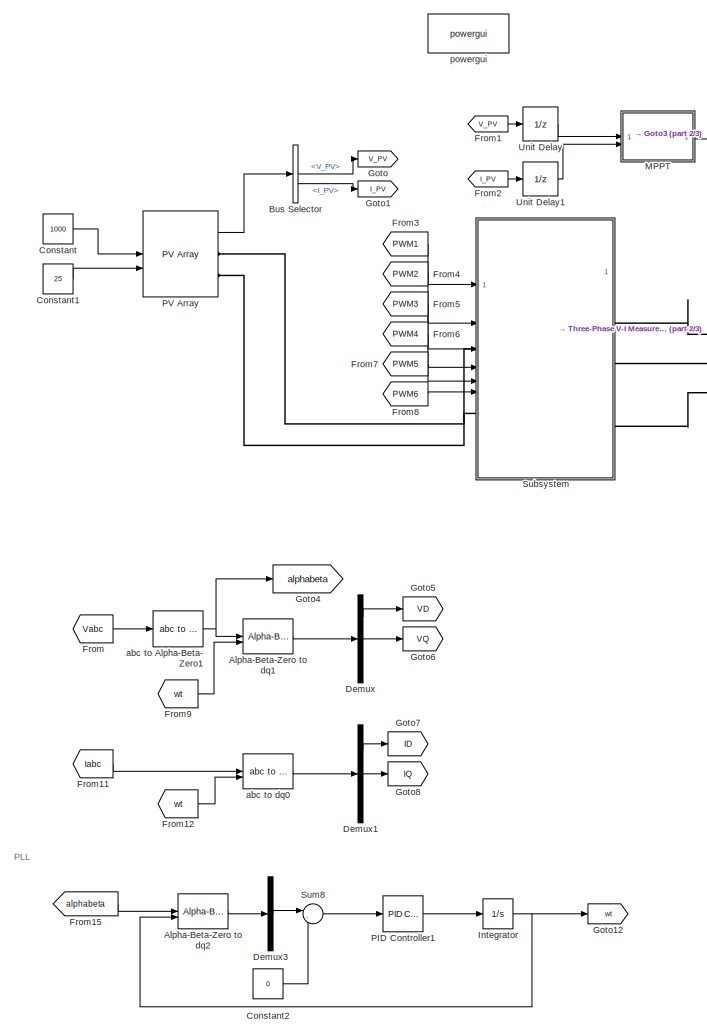
[diagram: root canvas - part 1/3, left side, full height]
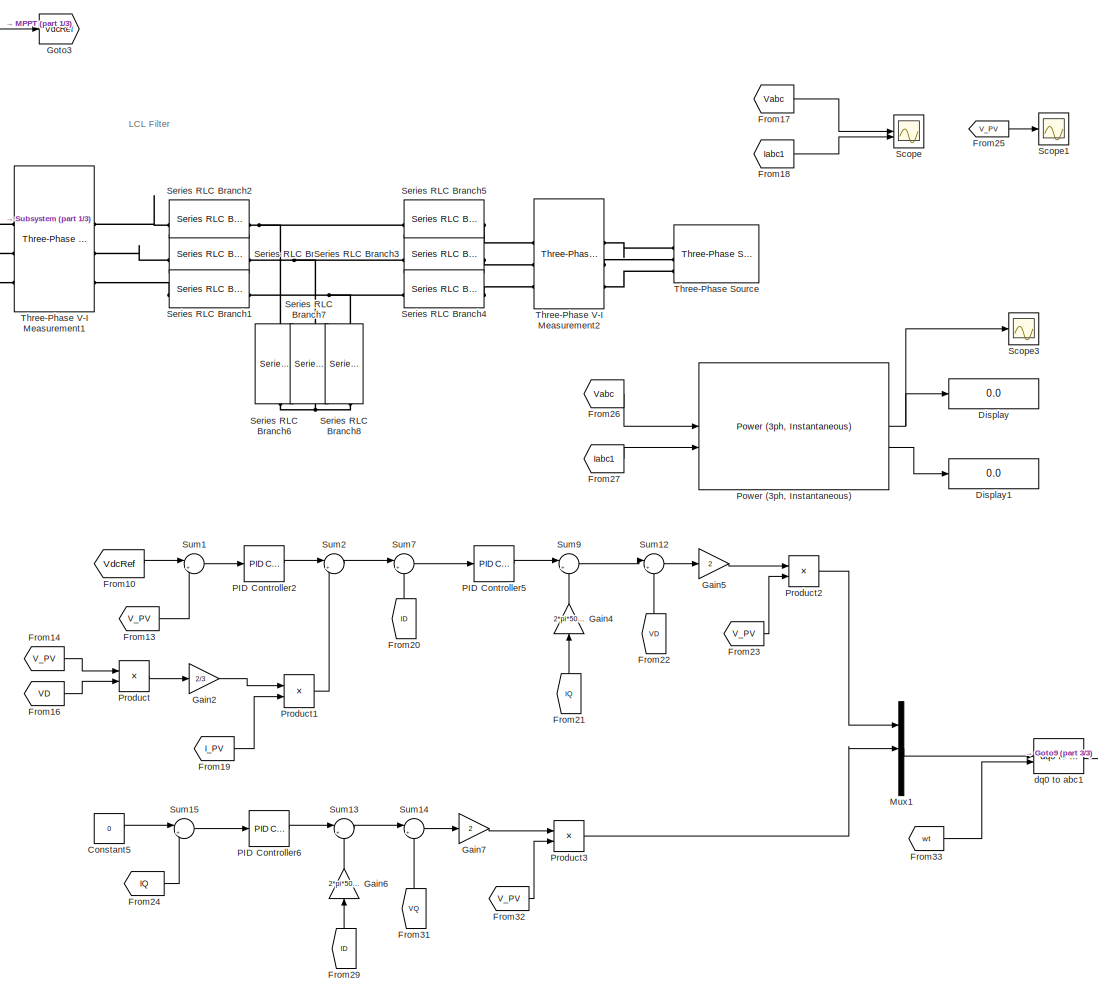
[diagram: root canvas - part 2/3, center side, full height]
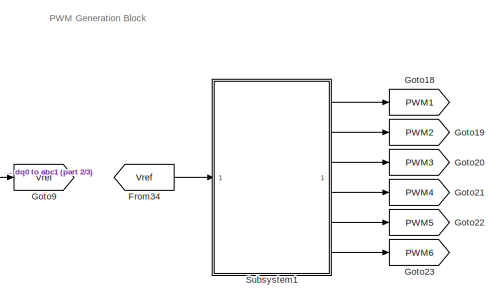
[diagram: root canvas - part 3/3, bottom right region]
MODEL slx_18b211c96a8c
KIND model
CONFIG AbsTol = auto
CONFIG EnableMultiTasking = off
CONFIG FixedStep = 1e-6
CONFIG MaxStep = auto
CONFIG MinStep = auto
CONFIG RelTol = 1e-3
CONFIG SampleTimeConstraint = Unconstrained
CONFIG SolverName = ode8
CONFIG StartTime = 0.0
CONFIG StopTime = 0.5
BLOCK [Reference] Alpha-Beta-Zero to dq1  REF=spsAlphaBetaZerotodq0Lib/Alpha-Beta-Zero
to dq0
  LibrarySourceBlock = sps_lib/Control/Alpha-Beta-Zero\nto dq0
  SourceBlock = spsAlphaBetaZerotodq0Lib/Alpha-Beta-Zero\nto dq0
  SourceType = Alpha-Beta-Zero to dq0 Transformation
BLOCK [Reference] Alpha-Beta-Zero to dq2  REF=spsAlphaBetaZerotodq0Lib/Alpha-Beta-Zero
to dq0
  LibrarySourceBlock = sps_lib/Control/Alpha-Beta-Zero\nto dq0
  SourceBlock = spsAlphaBetaZerotodq0Lib/Alpha-Beta-Zero\nto dq0
  SourceType = Alpha-Beta-Zero to dq0 Transformation
BLOCK [BusSelector] Bus Selector
  OutputSignals = V_PV,I_PV
BLOCK [Constant] Constant
  Value = 1000
BLOCK [Constant] Constant1
  Value = 25
BLOCK [Constant] Constant2
  Value = 0
BLOCK [Constant] Constant5
  Value = 0
BLOCK [Demux] Demux
  Outputs = 3
BLOCK [Demux] Demux1
  Outputs = 3
BLOCK [Demux] Demux3
  Outputs = 3
BLOCK [Display] Display
  Decimation = 1
BLOCK [Display] Display1
  Decimation = 1
BLOCK [From] From
  GotoTag = Vabc
  TagVisibility = global
BLOCK [From] From1
  GotoTag = V_PV
BLOCK [From] From10
  GotoTag = VdcRef
BLOCK [From] From11
  GotoTag = Iabc
  TagVisibility = global
BLOCK [From] From12
  GotoTag = wt
BLOCK [From] From13
  GotoTag = V_PV
BLOCK [From] From14
  GotoTag = V_PV
BLOCK [From] From15
  GotoTag = alphabeta
BLOCK [From] From16
  GotoTag = VD
BLOCK [From] From17
  GotoTag = Vabc
  TagVisibility = global
BLOCK [From] From18
  GotoTag = Iabc1
  TagVisibility = global
BLOCK [From] From19
  GotoTag = I_PV
BLOCK [From] From2
  GotoTag = I_PV
BLOCK [From] From20
  GotoTag = ID
  NameLocation = right
BLOCK [From] From21
  GotoTag = IQ
  NameLocation = right
BLOCK [From] From22
  GotoTag = VD
  NameLocation = right
BLOCK [From] From23
  GotoTag = V_PV
BLOCK [From] From24
  GotoTag = IQ
BLOCK [From] From25
  GotoTag = V_PV
BLOCK [From] From26
  GotoTag = Vabc
  TagVisibility = global
BLOCK [From] From27
  GotoTag = Iabc1
  TagVisibility = global
BLOCK [From] From29
  GotoTag = ID
  NameLocation = right
BLOCK [From] From3
  GotoTag = PWM1
BLOCK [From] From31
  GotoTag = VQ
  NameLocation = right
BLOCK [From] From32
  GotoTag = V_PV
BLOCK [From] From33
  GotoTag = wt
BLOCK [From] From34
  GotoTag = Vref
BLOCK [From] From4
  GotoTag = PWM2
BLOCK [From] From5
  GotoTag = PWM3
BLOCK [From] From6
  GotoTag = PWM4
BLOCK [From] From7
  GotoTag = PWM5
BLOCK [From] From8
  GotoTag = PWM6
BLOCK [From] From9
  GotoTag = wt
BLOCK [Gain] Gain2
  Gain = 2/3
BLOCK [Gain] Gain4
  Gain = 2*pi*50*1000e-6
  NameLocation = right
BLOCK [Gain] Gain5
  Gain = 2
BLOCK [Gain] Gain6
  Gain = 2*pi*50*1000e-6
  NameLocation = right
BLOCK [Gain] Gain7
  Gain = 2
BLOCK [Goto] Goto
  GotoTag = V_PV
BLOCK [Goto] Goto1
  GotoTag = I_PV
BLOCK [Goto] Goto12
  GotoTag = wt
BLOCK [Goto] Goto18
  GotoTag = PWM1
BLOCK [Goto] Goto19
  GotoTag = PWM2
BLOCK [Goto] Goto20
  GotoTag = PWM3
BLOCK [Goto] Goto21
  GotoTag = PWM4
BLOCK [Goto] Goto22
  GotoTag = PWM5
BLOCK [Goto] Goto23
  GotoTag = PWM6
BLOCK [Goto] Goto3
  GotoTag = VdcRef
BLOCK [Goto] Goto4
  GotoTag = alphabeta
BLOCK [Goto] Goto5
  GotoTag = VD
BLOCK [Goto] Goto6
  GotoTag = VQ
BLOCK [Goto] Goto7
  GotoTag = ID
BLOCK [Goto] Goto8
  GotoTag = IQ
BLOCK [Goto] Goto9
  GotoTag = Vref
BLOCK [Integrator] Integrator
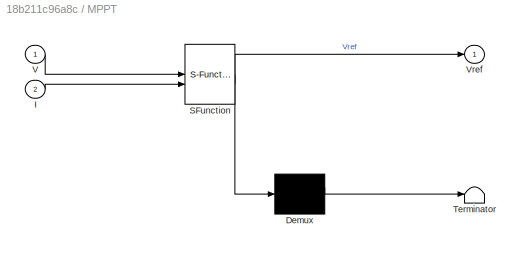
BLOCK [SubSystem] MPPT
  ErrorFcn = Stateflow.Translate.translate
  LibrarySourceBlock = simulink/User-Defined\nFunctions/MATLAB Function
  PermitHierarchicalResolution = ExplicitOnly
  SFBlockType = MATLAB Function
  TreatAsAtomicUnit = on
BLOCK [Demux] MPPT/ Demux 
  Outputs = 1
BLOCK [S-Function] MPPT/ SFunction 
  EnableBusSupport = on
  FunctionName = sf_sfun
  PortCounts = [2 2]
  SFcnIsStateOwnerBlock = off
  SFunctionDeploymentMode = off
  Tag = Stateflow S-Function 2
BLOCK [Terminator] MPPT/ Terminator 
BLOCK [Inport] MPPT/I
  Port = 2
BLOCK [Inport] MPPT/V
BLOCK [Outport] MPPT/Vref
BLOCK [Mux] Mux1
  DisplayOption = bar
  Inputs = 3
BLOCK [Reference] PID Controller1  REF=slpidlib/PID Controller
  LibrarySourceBlock = simulink/Continuous/PID Controller
  SourceBlock = slpidlib/PID Controller
  SourceType = PID 1dof
BLOCK [Reference] PID Controller2  REF=slpidlib/PID Controller
  LibrarySourceBlock = simulink/Continuous/PID Controller
  SourceBlock = slpidlib/PID Controller
  SourceType = PID 1dof
BLOCK [Reference] PID Controller5  REF=slpidlib/PID Controller
  LibrarySourceBlock = simulink/Continuous/PID Controller
  SourceBlock = slpidlib/PID Controller
  SourceType = PID 1dof
BLOCK [Reference] PID Controller6  REF=slpidlib/PID Controller
  LibrarySourceBlock = simulink/Continuous/PID Controller
  SourceBlock = slpidlib/PID Controller
  SourceType = PID 1dof
BLOCK [Reference] PV Array  REF=spsPVArrayLib/PV Array
  LibrarySourceBlock = sps_lib/Sources/PV Array
  SourceBlock = spsPVArrayLib/PV Array
  SourceType = PV array
BLOCK [Reference] Power (3ph, Instantaneous)  REF=spsPower3phInstantaneousLib/Power
(3ph, Instantaneous)
  LibrarySourceBlock = sps_lib/Sensors and Measurements/Power\n(3ph, Instantaneous)
  SourceBlock = spsPower3phInstantaneousLib/Power\n(3ph, Instantaneous)
  SourceType = Power (3ph, Instantaneous)
BLOCK [Product] Product
  Inputs = */
BLOCK [Product] Product1
BLOCK [Product] Product2
  Inputs = */
BLOCK [Product] Product3
  Inputs = */
BLOCK [Scope] Scope
  Floating = off
  NumInputPorts = 2
  ScopeSpecificationString = Simulink.scopes.TimeScopeBlockCfg('CurrentConfiguration', extmgr.ConfigurationSet(extmgr.Configuration('Core','General UI',true),extmgr.Configuration('Core','Source UI',true),extmgr.Configuration('Sources','WiredSimulink',true,'DataLoggingSaveFormat','StructureWithTime'),extmgr.Configuration('Visuals','Time Domain',true,'SerializedDisplays',{struct('MinYLimReal','-408.40142','MaxYLimReal','408.471...<+2088ch>
BLOCK [Scope] Scope1
  Floating = off
  NumInputPorts = 1
  ScopeSpecificationString = Simulink.scopes.TimeScopeBlockCfg('CurrentConfiguration', extmgr.ConfigurationSet(extmgr.Configuration('Core','General UI',true),extmgr.Configuration('Core','Source UI',true),extmgr.Configuration('Sources','WiredSimulink',true,'DataLoggingVariableName','ScopeData1'),extmgr.Configuration('Visuals','Time Domain',true,'SerializedDisplays',{struct('MinYLimReal','-109.10547','MaxYLimReal','982.72803','...<+1408ch>
BLOCK [Scope] Scope3
  Floating = off
  NumInputPorts = 1
  ScopeSpecificationString = Simulink.scopes.TimeScopeBlockCfg('CurrentConfiguration', extmgr.ConfigurationSet(extmgr.Configuration('Core','General UI',true),extmgr.Configuration('Core','Source UI',true),extmgr.Configuration('Sources','WiredSimulink',true,'DataLoggingVariableName','ScopeData2'),extmgr.Configuration('Visuals','Time Domain',true,'SerializedDisplays',{struct('MinYLimReal','-253369.15548','MaxYLimReal','232535.47...<+1452ch>
BLOCK [Reference] Series RLC Branch  REF=spsSeriesRLCBranchLib/Series RLC Branch
  LibrarySourceBlock = sps_lib/Passives/Series RLC Branch
  SourceBlock = spsSeriesRLCBranchLib/Series RLC Branch
  SourceType = Series RLC Branch
BLOCK [Reference] Series RLC Branch1  REF=spsSeriesRLCBranchLib/Series RLC Branch
  LibrarySourceBlock = sps_lib/Passives/Series RLC Branch
  SourceBlock = spsSeriesRLCBranchLib/Series RLC Branch
  SourceType = Series RLC Branch
BLOCK [Reference] Series RLC Branch2  REF=spsSeriesRLCBranchLib/Series RLC Branch
  LibrarySourceBlock = sps_lib/Passives/Series RLC Branch
  SourceBlock = spsSeriesRLCBranchLib/Series RLC Branch
  SourceType = Series RLC Branch
BLOCK [Reference] Series RLC Branch3  REF=spsSeriesRLCBranchLib/Series RLC Branch
  LibrarySourceBlock = sps_lib/Passives/Series RLC Branch
  SourceBlock = spsSeriesRLCBranchLib/Series RLC Branch
  SourceType = Series RLC Branch
BLOCK [Reference] Series RLC Branch4  REF=spsSeriesRLCBranchLib/Series RLC Branch
  LibrarySourceBlock = sps_lib/Passives/Series RLC Branch
  SourceBlock = spsSeriesRLCBranchLib/Series RLC Branch
  SourceType = Series RLC Branch
BLOCK [Reference] Series RLC Branch5  REF=spsSeriesRLCBranchLib/Series RLC Branch
  LibrarySourceBlock = sps_lib/Passives/Series RLC Branch
  SourceBlock = spsSeriesRLCBranchLib/Series RLC Branch
  SourceType = Series RLC Branch
BLOCK [Reference] Series RLC Branch6  REF=spsSeriesRLCBranchLib/Series RLC Branch
  LibrarySourceBlock = sps_lib/Passives/Series RLC Branch
  NameLocation = left
  SourceBlock = spsSeriesRLCBranchLib/Series RLC Branch
  SourceType = Series RLC Branch
BLOCK [Reference] Series RLC Branch7  REF=spsSeriesRLCBranchLib/Series RLC Branch
  LibrarySourceBlock = sps_lib/Passives/Series RLC Branch
  NameLocation = left
  SourceBlock = spsSeriesRLCBranchLib/Series RLC Branch
  SourceType = Series RLC Branch
BLOCK [Reference] Series RLC Branch8  REF=spsSeriesRLCBranchLib/Series RLC Branch
  LibrarySourceBlock = sps_lib/Passives/Series RLC Branch
  NameLocation = left
  SourceBlock = spsSeriesRLCBranchLib/Series RLC Branch
  SourceType = Series RLC Branch
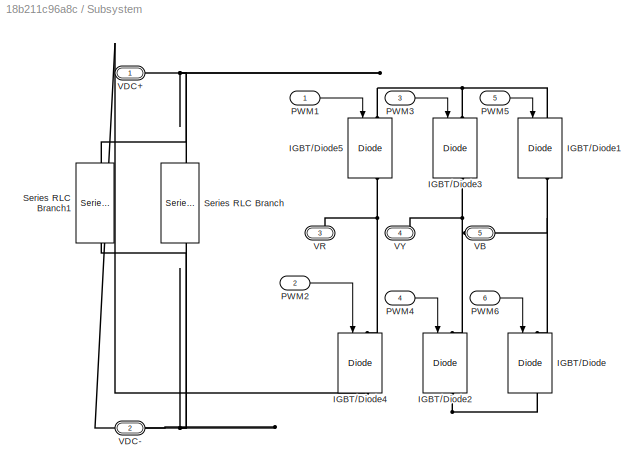
BLOCK [SubSystem] Subsystem
BLOCK [Reference] Subsystem/IGBT//Diode  REF=spsIGBTDiodeLib/IGBT//Diode
  LibrarySourceBlock = sps_lib/Power Electronics/IGBT//Diode
  NameLocation = left
  SourceBlock = spsIGBTDiodeLib/IGBT//Diode
  SourceType = IGBT/Diode
BLOCK [Reference] Subsystem/IGBT//Diode1  REF=spsIGBTDiodeLib/IGBT//Diode
  LibrarySourceBlock = sps_lib/Power Electronics/IGBT//Diode
  NameLocation = left
  SourceBlock = spsIGBTDiodeLib/IGBT//Diode
  SourceType = IGBT/Diode
BLOCK [Reference] Subsystem/IGBT//Diode2  REF=spsIGBTDiodeLib/IGBT//Diode
  LibrarySourceBlock = sps_lib/Power Electronics/IGBT//Diode
  NameLocation = left
  SourceBlock = spsIGBTDiodeLib/IGBT//Diode
  SourceType = IGBT/Diode
BLOCK [Reference] Subsystem/IGBT//Diode3  REF=spsIGBTDiodeLib/IGBT//Diode
  LibrarySourceBlock = sps_lib/Power Electronics/IGBT//Diode
  NameLocation = left
  SourceBlock = spsIGBTDiodeLib/IGBT//Diode
  SourceType = IGBT/Diode
BLOCK [Reference] Subsystem/IGBT//Diode4  REF=spsIGBTDiodeLib/IGBT//Diode
  LibrarySourceBlock = sps_lib/Power Electronics/IGBT//Diode
  NameLocation = left
  SourceBlock = spsIGBTDiodeLib/IGBT//Diode
  SourceType = IGBT/Diode
BLOCK [Reference] Subsystem/IGBT//Diode5  REF=spsIGBTDiodeLib/IGBT//Diode
  LibrarySourceBlock = sps_lib/Power Electronics/IGBT//Diode
  NameLocation = left
  SourceBlock = spsIGBTDiodeLib/IGBT//Diode
  SourceType = IGBT/Diode
BLOCK [Inport] Subsystem/PWM1
BLOCK [Inport] Subsystem/PWM2
  Port = 2
BLOCK [Inport] Subsystem/PWM3
  Port = 3
BLOCK [Inport] Subsystem/PWM4
  Port = 4
BLOCK [Inport] Subsystem/PWM5
  Port = 5
BLOCK [Inport] Subsystem/PWM6
  Port = 6
BLOCK [Reference] Subsystem/Series RLC Branch  REF=spsSeriesRLCBranchLib/Series RLC Branch
  LibrarySourceBlock = sps_lib/Passives/Series RLC Branch
  NameLocation = left
  SourceBlock = spsSeriesRLCBranchLib/Series RLC Branch
  SourceType = Series RLC Branch
BLOCK [Reference] Subsystem/Series RLC Branch1  REF=spsSeriesRLCBranchLib/Series RLC Branch
  LibrarySourceBlock = sps_lib/Passives/Series RLC Branch
  NameLocation = left
  SourceBlock = spsSeriesRLCBranchLib/Series RLC Branch
  SourceType = Series RLC Branch
BLOCK [PMIOPort] Subsystem/VB
  Port = 5
  Side = Right
BLOCK [PMIOPort] Subsystem/VDC+
  Side = Left
BLOCK [PMIOPort] Subsystem/VDC-
  Port = 2
  Side = Left
BLOCK [PMIOPort] Subsystem/VR
  Port = 3
  Side = Right
BLOCK [PMIOPort] Subsystem/VY
  Port = 4
  Side = Right
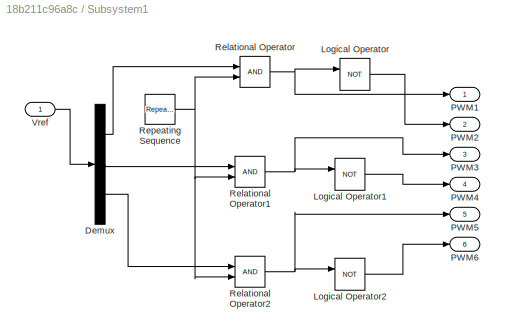
BLOCK [SubSystem] Subsystem1
BLOCK [Demux] Subsystem1/Demux
  Outputs = 3
BLOCK [Logic] Subsystem1/Logical Operator
  AllPortsSameDT = off
  Operator = NOT
  OutDataTypeStr = boolean
BLOCK [Logic] Subsystem1/Logical Operator1
  AllPortsSameDT = off
  Operator = NOT
  OutDataTypeStr = boolean
BLOCK [Logic] Subsystem1/Logical Operator2
  AllPortsSameDT = off
  Operator = NOT
  OutDataTypeStr = boolean
BLOCK [Outport] Subsystem1/PWM1
BLOCK [Outport] Subsystem1/PWM2
  Port = 2
BLOCK [Outport] Subsystem1/PWM3
  Port = 3
BLOCK [Outport] Subsystem1/PWM4
  Port = 4
BLOCK [Outport] Subsystem1/PWM5
  Port = 5
BLOCK [Outport] Subsystem1/PWM6
  Port = 6
BLOCK [RelationalOperator] Subsystem1/Relational Operator
  InputSameDT = off
  OutDataTypeStr = boolean
  RndMeth = Simplest
BLOCK [RelationalOperator] Subsystem1/Relational Operator1
  InputSameDT = off
  OutDataTypeStr = boolean
  RndMeth = Simplest
BLOCK [RelationalOperator] Subsystem1/Relational Operator2
  InputSameDT = off
  OutDataTypeStr = boolean
  RndMeth = Simplest
BLOCK [Reference] Subsystem1/Repeating Sequence  REF=simulink/Sources/Repeating
Sequence
  SourceBlock = simulink/Sources/Repeating\nSequence
  SourceType = Repeating table
BLOCK [Inport] Subsystem1/Vref
BLOCK [Sum] Sum1
  Inputs = |+-
BLOCK [Sum] Sum12
  Inputs = |++
BLOCK [Sum] Sum13
  Inputs = |+-
BLOCK [Sum] Sum14
  Inputs = |++
BLOCK [Sum] Sum15
  Inputs = |+-
BLOCK [Sum] Sum2
  Inputs = |++
BLOCK [Sum] Sum7
  Inputs = |+-
BLOCK [Sum] Sum8
  Inputs = |-+
BLOCK [Sum] Sum9
  Inputs = |++
BLOCK [Reference] Three-Phase Source  REF=spsThreePhaseSourceLib/Three-Phase Source
  LibrarySourceBlock = sps_lib/Sources/Three-Phase Source
  NameLocation = top
  SourceBlock = spsThreePhaseSourceLib/Three-Phase Source
  SourceType = Three-Phase Source
BLOCK [Reference] Three-Phase V-I Measurement1  REF=spsThreePhaseVIMeasurementLib/Three-Phase
V-I Measurement
  LibrarySourceBlock = sps_lib/Sensors and Measurements/Three-Phase\nV-I Measurement
  SourceBlock = spsThreePhaseVIMeasurementLib/Three-Phase\nV-I Measurement
  SourceType = Three-Phase VI Measurement
BLOCK [Reference] Three-Phase V-I Measurement2  REF=spsThreePhaseVIMeasurementLib/Three-Phase
V-I Measurement
  LibrarySourceBlock = sps_lib/Sensors and Measurements/Three-Phase\nV-I Measurement
  SourceBlock = spsThreePhaseVIMeasurementLib/Three-Phase\nV-I Measurement
  SourceType = Three-Phase VI Measurement
BLOCK [UnitDelay] Unit Delay
  HasFrameUpgradeWarning = on
  SampleTime = 1e-4
BLOCK [UnitDelay] Unit Delay1
  HasFrameUpgradeWarning = on
  SampleTime = 1e-4
BLOCK [Reference] abc to Alpha-Beta-Zero1  REF=spsabctoAlphaBetaZeroLib/abc to
Alpha-Beta-Zero
  LibrarySourceBlock = sps_lib/Control/abc to\nAlpha-Beta-Zero
  SourceBlock = spsabctoAlphaBetaZeroLib/abc to\nAlpha-Beta-Zero
  SourceType = abc to Alpha-Beta-Zero Transformation
BLOCK [Reference] abc to dq0  REF=spsabctodq0Lib/abc to dq0
  LibrarySourceBlock = sps_lib/Control/abc to dq0
  SourceBlock = spsabctodq0Lib/abc to dq0
  SourceType = abc to dq0 Transformation
BLOCK [Reference] dq0 to abc1  REF=spsdq0toabcLib/dq0 to abc
  LibrarySourceBlock = sps_lib/Control/dq0 to abc
  SourceBlock = spsdq0toabcLib/dq0 to abc
  SourceType = dq0 to abc Transformation
BLOCK [Reference] powergui  REF=spspowerguiLib/powergui
  LibrarySourceBlock = sps_lib/powergui
  Priority = 1
  SourceBlock = spspowerguiLib/powergui
  SourceType = PSB option menu block
ANNOTATION (root): LCL Filter
ANNOTATION (root): PLL
ANNOTATION (root): PWM Generation Block
LINE Alpha-Beta-Zero to dq1:1 -> Demux:1
LINE Alpha-Beta-Zero to dq2:1 -> Demux3:1
LINE Bus Selector:1 -> Goto:1
LINE Bus Selector:2 -> Goto1:1
LINE Constant1:1 -> PV Array:2
LINE Constant2:1 -> Sum8:2
LINE Constant5:1 -> Sum15:1
LINE Constant:1 -> PV Array:1
LINE Demux1:1 -> Goto7:1
LINE Demux1:2 -> Goto8:1
LINE Demux3:2 -> Sum8:1
LINE Demux:1 -> Goto5:1
LINE Demux:2 -> Goto6:1
LINE From10:1 -> Sum1:1
LINE From11:1 -> abc to dq0:1
LINE From12:1 -> abc to dq0:2
LINE From13:1 -> Sum1:2
LINE From14:1 -> Product:1
LINE From15:1 -> Alpha-Beta-Zero to dq2:1
LINE From16:1 -> Product:2
LINE From17:1 -> Scope:1
LINE From18:1 -> Scope:2
LINE From19:1 -> Product1:2
LINE From1:1 -> Unit Delay:1
LINE From20:1 -> Sum7:2
LINE From21:1 -> Gain4:1
LINE From22:1 -> Sum12:2
LINE From23:1 -> Product2:2
LINE From24:1 -> Sum15:2
LINE From25:1 -> Scope1:1
LINE From26:1 -> Power (3ph, Instantaneous):1
LINE From27:1 -> Power (3ph, Instantaneous):2
LINE From29:1 -> Gain6:1
LINE From2:1 -> Unit Delay1:1
LINE From31:1 -> Sum14:2
LINE From32:1 -> Product3:2
LINE From33:1 -> dq0 to abc1:2
LINE From34:1 -> Subsystem1:1
LINE From3:1 -> Subsystem:1
LINE From4:1 -> Subsystem:2
LINE From5:1 -> Subsystem:3
LINE From6:1 -> Subsystem:4
LINE From7:1 -> Subsystem:5
LINE From8:1 -> Subsystem:6
LINE From9:1 -> Alpha-Beta-Zero to dq1:2
LINE From:1 -> abc to Alpha-Beta-Zero1:1
LINE Gain2:1 -> Product1:1
LINE Gain4:1 -> Sum9:2
LINE Gain5:1 -> Product2:1
LINE Gain6:1 -> Sum13:2
LINE Gain7:1 -> Product3:1
NET Integrator:1 -> Alpha-Beta-Zero to dq2:2, Goto12:1
LINE MPPT:1 -> Goto3:1
LINE Mux1:1 -> dq0 to abc1:1
LINE PID Controller1:1 -> Integrator:1
LINE PID Controller2:1 -> Sum2:1
LINE PID Controller5:1 -> Sum9:1
LINE PID Controller6:1 -> Sum13:1
LINE PV Array:1 -> Bus Selector:1
NET Power (3ph, Instantaneous):1 -> Display:1, Scope3:1
LINE Power (3ph, Instantaneous):2 -> Display1:1
LINE Product1:1 -> Sum2:2
LINE Product2:1 -> Mux1:1
LINE Product3:1 -> Mux1:2
LINE Product:1 -> Gain2:1
LINE Subsystem/PWM1:1 -> Subsystem/IGBT//Diode5:1
LINE Subsystem/PWM2:1 -> Subsystem/IGBT//Diode4:1
LINE Subsystem/PWM3:1 -> Subsystem/IGBT//Diode3:1
LINE Subsystem/PWM4:1 -> Subsystem/IGBT//Diode2:1
LINE Subsystem/PWM5:1 -> Subsystem/IGBT//Diode1:1
LINE Subsystem/PWM6:1 -> Subsystem/IGBT//Diode:1
LINE Subsystem1/Demux:1 -> Subsystem1/Relational Operator:1
LINE Subsystem1/Demux:2 -> Subsystem1/Relational Operator1:1
LINE Subsystem1/Demux:3 -> Subsystem1/Relational Operator2:1
LINE Subsystem1/Logical Operator1:1 -> Subsystem1/PWM4:1
LINE Subsystem1/Logical Operator2:1 -> Subsystem1/PWM6:1
LINE Subsystem1/Logical Operator:1 -> Subsystem1/PWM2:1
NET Subsystem1/Relational Operator1:1 -> Subsystem1/Logical Operator1:1, Subsystem1/PWM3:1
NET Subsystem1/Relational Operator2:1 -> Subsystem1/Logical Operator2:1, Subsystem1/PWM5:1
NET Subsystem1/Relational Operator:1 -> Subsystem1/Logical Operator:1, Subsystem1/PWM1:1
NET Subsystem1/Repeating Sequence:1 -> Subsystem1/Relational Operator1:2, Subsystem1/Relational Operator2:2, Subsystem1/Relational Operator:2
LINE Subsystem1/Vref:1 -> Subsystem1/Demux:1
LINE Subsystem1:1 -> Goto18:1
LINE Subsystem1:2 -> Goto19:1
LINE Subsystem1:3 -> Goto20:1
LINE Subsystem1:4 -> Goto21:1
LINE Subsystem1:5 -> Goto22:1
LINE Subsystem1:6 -> Goto23:1
LINE Sum12:1 -> Gain5:1
LINE Sum13:1 -> Sum14:1
LINE Sum14:1 -> Gain7:1
LINE Sum15:1 -> PID Controller6:1
LINE Sum1:1 -> PID Controller2:1
LINE Sum2:1 -> Sum7:1
LINE Sum7:1 -> PID Controller5:1
LINE Sum8:1 -> PID Controller1:1
LINE Sum9:1 -> Sum12:1
LINE Unit Delay1:1 -> MPPT:2
LINE Unit Delay:1 -> MPPT:1
NET abc to Alpha-Beta-Zero1:1 -> Alpha-Beta-Zero to dq1:1, Goto4:1
LINE abc to dq0:1 -> Demux1:1
LINE dq0 to abc1:1 -> Goto9:1
PLINE PV Array:RConn1 -- Subsystem:LConn1
PLINE PV Array:RConn2 -- Subsystem:LConn2
PLINE Series RLC Branch1:LConn1 -- Three-Phase V-I Measurement1:RConn3
PNET net1: Series RLC Branch1:RConn1 -- Series RLC Branch4:LConn1 -- Series RLC Branch8:LConn1
PLINE Series RLC Branch2:LConn1 -- Three-Phase V-I Measurement1:RConn1
PNET net2: Series RLC Branch2:RConn1 -- Series RLC Branch5:LConn1 -- Series RLC Branch6:LConn1
PNET net3: Series RLC Branch3:LConn1 -- Series RLC Branch7:LConn1 -- Series RLC Branch:RConn1
PLINE Series RLC Branch3:RConn1 -- Three-Phase V-I Measurement2:RConn2
PLINE Series RLC Branch4:RConn1 -- Three-Phase V-I Measurement2:RConn3
PLINE Series RLC Branch5:RConn1 -- Three-Phase V-I Measurement2:RConn1
PNET net4: Series RLC Branch6:RConn1 -- Series RLC Branch7:RConn1 -- Series RLC Branch8:RConn1
PLINE Series RLC Branch:LConn1 -- Three-Phase V-I Measurement1:RConn2
PNET net5: Subsystem/IGBT//Diode1:LConn1 -- Subsystem/IGBT//Diode3:LConn1 -- Subsystem/IGBT//Diode5:LConn1 -- Subsystem/Series RLC Branch1:LConn1 -- Subsystem/Series RLC Branch:LConn1 -- Subsystem/VDC+:RConn1
PNET net6: Subsystem/IGBT//Diode1:RConn1 -- Subsystem/IGBT//Diode:LConn1 -- Subsystem/VB:RConn1
PNET net7: Subsystem/IGBT//Diode2:LConn1 -- Subsystem/IGBT//Diode3:RConn1 -- Subsystem/VY:RConn1
PNET net8: Subsystem/IGBT//Diode2:RConn1 -- Subsystem/IGBT//Diode4:RConn1 -- Subsystem/IGBT//Diode:RConn1 -- Subsystem/Series RLC Branch1:RConn1 -- Subsystem/Series RLC Branch:RConn1 -- Subsystem/VDC-:RConn1
PNET net9: Subsystem/IGBT//Diode4:LConn1 -- Subsystem/IGBT//Diode5:RConn1 -- Subsystem/VR:RConn1
PLINE Subsystem:RConn1 -- Three-Phase V-I Measurement1:LConn1
PLINE Subsystem:RConn2 -- Three-Phase V-I Measurement1:LConn2
PLINE Subsystem:RConn3 -- Three-Phase V-I Measurement1:LConn3
PLINE Three-Phase Source:RConn1 -- Three-Phase V-I Measurement2:LConn1
PLINE Three-Phase Source:RConn2 -- Three-Phase V-I Measurement2:LConn2
PLINE Three-Phase Source:RConn3 -- Three-Phase V-I Measurement2:LConn3
note: NET lines group one-source signal fan-out (src -> all destinations, sorted); 1:1 wires keep LINE; PNET lines group multi-terminal physical nets as a canonical sorted terminal list (undirected conserving connections); 2-terminal nets keep the pairwise PLINE form
CHART MPPT states=1 transitions=1
  STATE_LABEL 'eML_blk_kernel()'
  STATE_LABEL 'SCRIPT:\nfunction  Vref=RefGen(V,I)\n\nVrefmax=907.5;\nVrefmin=0;\nVrefinit=750;\ndeltaVref=1;\npersistent Vold Pold Vrefold\ndataType="double";\n\nif isempty(Vold)\n    Vold=0;\n    Pold=0;\n    Vrefold=Vrefinit;\nend\n\nP=V*I;\ndV=V-Vold;\ndP=P-Pold;\n\nif dP~=0\n    if dP<0\n        if dV<0\n            Vref=Vrefold+deltaVref;\n        else\n            Vref=Vrefold-deltaVref;\n        end\n    else\n        if dV<0\n     ...<+211ch>'
CHART  states=0 transitions=0
